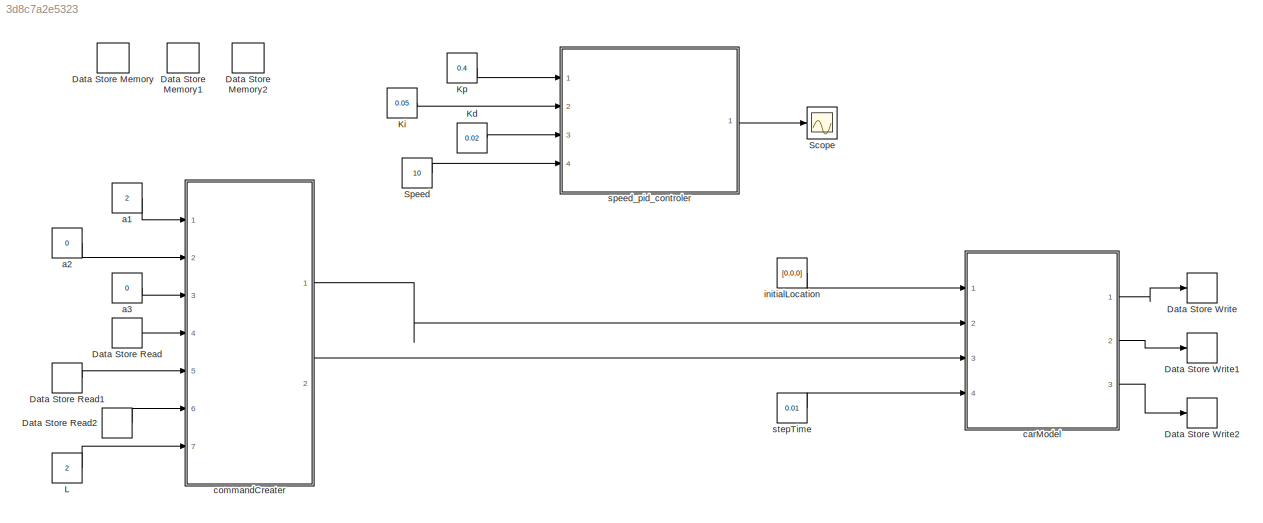
MODEL slx_3d8c7a2e5323
KIND model
CONFIG AbsTol = auto
CONFIG FixedStep = 0.01
CONFIG MaxStep = auto
CONFIG MinStep = auto
CONFIG RelTol = 1e-3
CONFIG SampleTimeConstraint = Unconstrained
CONFIG Solver = FixedStepDiscrete
CONFIG SolverMode = Auto
CONFIG SolverName = FixedStepDiscrete
CONFIG StartTime = 0.0
CONFIG StopTime = 3
BLOCK [DataStoreMemory] Data Store Memory
  DataStoreName = x
  ReadBeforeWriteMsg = warning
  WriteAfterReadMsg = warning
  WriteAfterWriteMsg = warning
BLOCK [DataStoreMemory] Data Store Memory1
  DataStoreName = y
  ReadBeforeWriteMsg = warning
  WriteAfterReadMsg = warning
  WriteAfterWriteMsg = warning
BLOCK [DataStoreMemory] Data Store Memory2
  DataStoreName = yaw
  ReadBeforeWriteMsg = warning
  WriteAfterReadMsg = warning
  WriteAfterWriteMsg = warning
BLOCK [DataStoreRead] Data Store Read
  DataStoreName = x
  Ports = [0, 1]
BLOCK [DataStoreRead] Data Store Read1
  DataStoreName = y
  Ports = [0, 1]
BLOCK [DataStoreRead] Data Store Read2
  DataStoreName = yaw
  Ports = [0, 1]
BLOCK [DataStoreWrite] Data Store Write
  DataStoreName = x
  Ports = [1]
BLOCK [DataStoreWrite] Data Store Write1
  DataStoreName = y
  Ports = [1]
BLOCK [DataStoreWrite] Data Store Write2
  DataStoreName = yaw
  Ports = [1]
BLOCK [Constant] Kd
  Value = 0.02
BLOCK [Constant] Ki
  Value = 0.05
BLOCK [Constant] Kp
  Value = 0.4
BLOCK [Constant] L
  Value = 2
BLOCK [Scope] Scope
  Ports = [1]
  ScopeSpecificationString = Simulink.scopes.TimeScopeBlockCfg('CurrentConfiguration', extmgr.ConfigurationSet(extmgr.Configuration('Core','General UI',true),extmgr.Configuration('Core','Source UI',true),extmgr.Configuration('Sources','WiredSimulink',true),extmgr.Configuration('Visuals','Time Domain',true,'SerializedDisplays',{struct('MinYLimReal','0.8875','MaxYLimReal','11.0125','YLabelReal','','MinYLimMag','0.8875','MaxYLim...<+1430ch>
BLOCK [Constant] Speed
  Value = 10
BLOCK [Constant] a1
  Value = 2
BLOCK [Constant] a2
  Value = 0
BLOCK [Constant] a3
  Value = 0
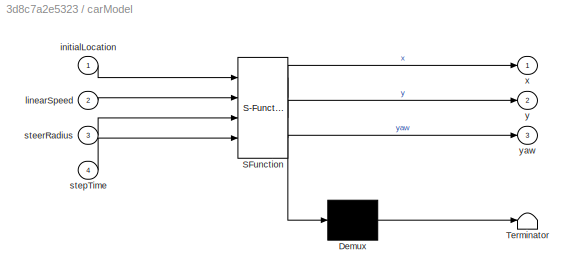
BLOCK [SubSystem] carModel 
  ErrorFcn = Stateflow.Translate.translate
  PermitHierarchicalResolution = ExplicitOnly
  Ports = [4, 3]
  RequestExecContextInheritance = off
  SFBlockType = MATLAB Function
  TreatAsAtomicUnit = on
  Variant = off
BLOCK [Demux] carModel / Demux 
  Outputs = 1
  Ports = [1, 1]
BLOCK [S-Function] carModel / SFunction 
  EnableBusSupport = on
  FunctionName = sf_sfun
  PortCounts = [4 4]
  Ports = [4, 4]
  SFunctionDeploymentMode = off
  Tag = Stateflow S-Function pure_pursuit 1
BLOCK [Terminator] carModel / Terminator 
BLOCK [Inport] carModel /initialLocation
  IconDisplay = Port number
BLOCK [Inport] carModel /linearSpeed
  IconDisplay = Port number
  Port = 2
BLOCK [Inport] carModel /steerRadius
  IconDisplay = Port number
  Port = 3
BLOCK [Inport] carModel /stepTime
  IconDisplay = Port number
  Port = 4
BLOCK [Outport] carModel /x
  IconDisplay = Port number
BLOCK [Outport] carModel /y
  IconDisplay = Port number
  Port = 2
BLOCK [Outport] carModel /yaw
  IconDisplay = Port number
  Port = 3
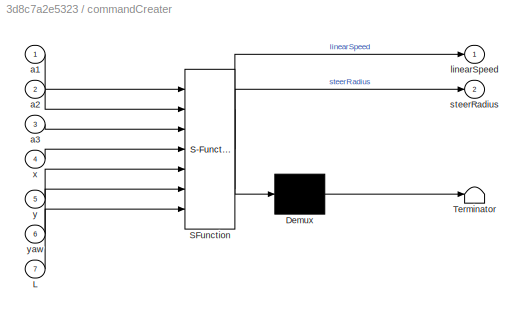
BLOCK [SubSystem] commandCreater
  ErrorFcn = Stateflow.Translate.translate
  PermitHierarchicalResolution = ExplicitOnly
  Ports = [7, 2]
  RequestExecContextInheritance = off
  SFBlockType = MATLAB Function
  TreatAsAtomicUnit = on
  Variant = off
BLOCK [Demux] commandCreater/ Demux 
  Outputs = 1
  Ports = [1, 1]
BLOCK [S-Function] commandCreater/ SFunction 
  EnableBusSupport = on
  FunctionName = sf_sfun
  PortCounts = [7 3]
  Ports = [7, 3]
  SFunctionDeploymentMode = off
  Tag = Stateflow S-Function pure_pursuit 3
BLOCK [Terminator] commandCreater/ Terminator 
BLOCK [Inport] commandCreater/L
  IconDisplay = Port number
  Port = 7
BLOCK [Inport] commandCreater/a1
  IconDisplay = Port number
BLOCK [Inport] commandCreater/a2
  IconDisplay = Port number
  Port = 2
BLOCK [Inport] commandCreater/a3
  IconDisplay = Port number
  Port = 3
BLOCK [Outport] commandCreater/linearSpeed
  IconDisplay = Port number
BLOCK [Outport] commandCreater/steerRadius
  IconDisplay = Port number
  Port = 2
BLOCK [Inport] commandCreater/x
  IconDisplay = Port number
  Port = 4
BLOCK [Inport] commandCreater/y
  IconDisplay = Port number
  Port = 5
BLOCK [Inport] commandCreater/yaw
  IconDisplay = Port number
  Port = 6
BLOCK [Constant] initialLocation
  Value = [0,0,0]
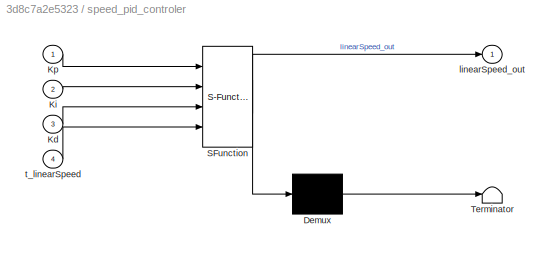
BLOCK [SubSystem] speed_pid_controler
  ErrorFcn = Stateflow.Translate.translate
  PermitHierarchicalResolution = ExplicitOnly
  Ports = [4, 1]
  RequestExecContextInheritance = off
  SFBlockType = MATLAB Function
  TreatAsAtomicUnit = on
  Variant = off
BLOCK [Demux] speed_pid_controler/ Demux 
  Outputs = 1
  Ports = [1, 1]
BLOCK [S-Function] speed_pid_controler/ SFunction 
  EnableBusSupport = on
  FunctionName = sf_sfun
  PortCounts = [4 2]
  Ports = [4, 2]
  SFunctionDeploymentMode = off
  Tag = Stateflow S-Function pure_pursuit 2
BLOCK [Terminator] speed_pid_controler/ Terminator 
BLOCK [Inport] speed_pid_controler/Kd
  IconDisplay = Port number
  Port = 3
BLOCK [Inport] speed_pid_controler/Ki
  IconDisplay = Port number
  Port = 2
BLOCK [Inport] speed_pid_controler/Kp
  IconDisplay = Port number
BLOCK [Outport] speed_pid_controler/linearSpeed_out
  IconDisplay = Port number
BLOCK [Inport] speed_pid_controler/t_linearSpeed
  IconDisplay = Port number
  Port = 4
BLOCK [Constant] stepTime
  Value = 0.01
LINE Data Store Read1:1 -> commandCreater:5
LINE Data Store Read2:1 -> commandCreater:6
LINE Data Store Read:1 -> commandCreater:4
LINE Kd:1 -> speed_pid_controler:3
LINE Ki:1 -> speed_pid_controler:2
LINE Kp:1 -> speed_pid_controler:1
LINE L:1 -> commandCreater:7
LINE Speed:1 -> speed_pid_controler:4
LINE a1:1 -> commandCreater:1
LINE a2:1 -> commandCreater:2
LINE a3:1 -> commandCreater:3
LINE carModel :1 -> Data Store Write:1
LINE carModel :2 -> Data Store Write1:1
LINE carModel :3 -> Data Store Write2:1
LINE commandCreater:1 -> carModel :2
LINE commandCreater:2 -> carModel :3
LINE initialLocation:1 -> carModel :1
LINE speed_pid_controler:1 -> Scope:1
LINE stepTime:1 -> carModel :4
CHART carModel
 states=1 transitions=1
  STATE_LABEL 'eML_blk_kernel()'
  STATE_LABEL "SCRIPT:\nfunction [x,y,yaw] = fcn(initialLocation,linearSpeed,steerRadius,stepTime)\n%#\npersistent x0;\npersistent y0;\npersistent theta0;\npersistent first_time_flag;\n\nif(isempty(x0))\n    x0 = 0;\n    y0 = 0;\n    theta0 = 0.0;\n    first_time_flag = 1;\nend\n\nfp = fopen('record.txt','a');\nif(first_time_flag == 1)\n    x=initialLocation(1);\n    y=initialLocation(2);\n    yaw = initialLocation(3);\n    first_t...<+571ch>"
CHART speed_pid_controler states=1 transitions=1
  STATE_LABEL 'eML_blk_kernel()'
  STATE_LABEL 'SCRIPT:\nfunction linearSpeed_out = fcn(Kp,Ki,Kd,t_linearSpeed)\npersistent last_err\npersistent last_last_err\npersistent sigma_err\npersistent last_val %上一次的值\n\nif(isempty(last_err))\n    last_err = 0;\n    sigma_err = 0;\n    last_val =0;\n    last_last_err=0;\nend \n\nerr = t_linearSpeed - last_val;\nsigma_err = sigma_err + err;\nlinearSpeed_out = Kp *err +Ki*sigma_err +Kd* (err-last_err);\n%linearSpeed_out =...<+192ch>'
CHART commandCreater states=1 transitions=1
  STATE_LABEL 'eML_blk_kernel()'
  STATE_LABEL 'SCRIPT:\nfunction [linearSpeed,steerRadius] = fcn(a1,a2,a3,x,y,yaw,L)\npersistent target_x;\npersistent target_y;\nif(isempty(target_x))\n    target_x = 0;\nend\n% if(isempty(target_y))\n%     target_y = 0;\n% end\n\n\ntarget_y = a1*target_x + a2*target_x^2 + a3*target_x^3;\n%target_y = sin(target_x);\ndis = (target_y-y)^2+(target_x-x)^2;\nt_yaw = atan2(target_y-y,target_x-x);\nif(dis < L*L)\n    target_x = target...<+311ch>'
